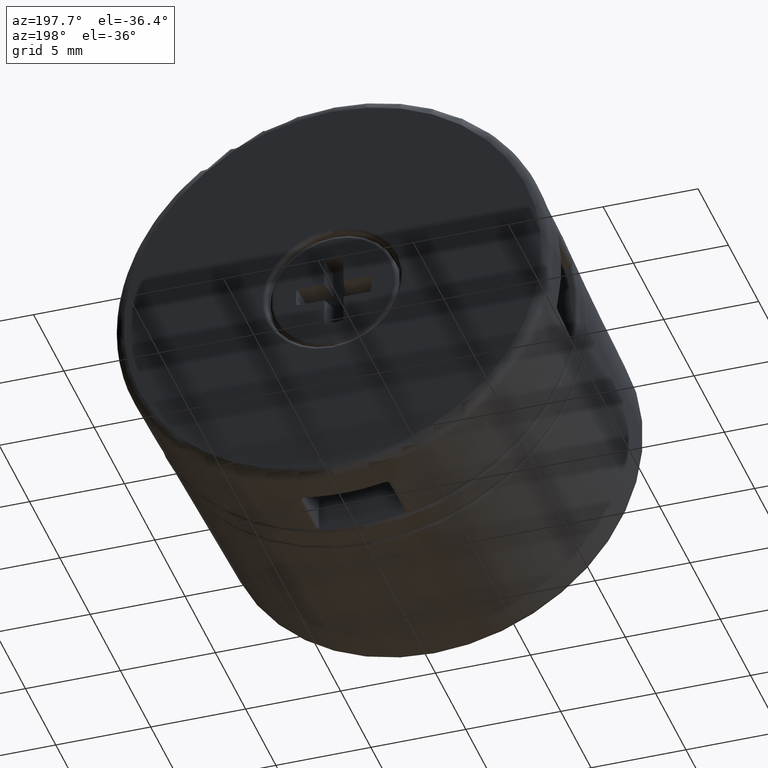
[diagram: clean part render]
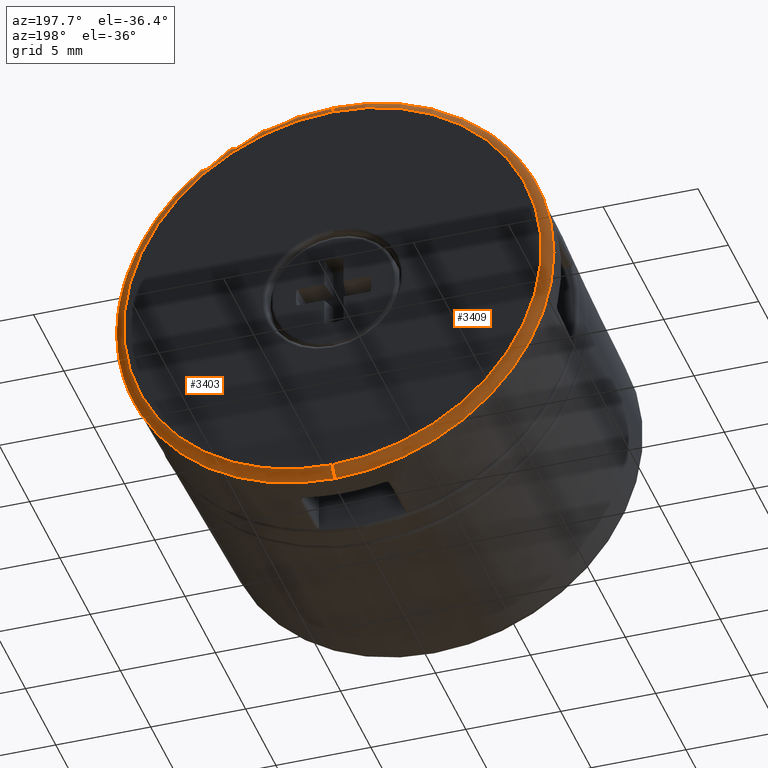
[diagram: same view with one multi-face feature highlighted, each face labeled with its STEP entity id]
A machine part, auxiliary view. The highlighted faces form ONE feature: a constant-radius fillet chain: 2 tangent blend faces with common blend radius 0.5 mm. The faces share edges in the B-rep.
Their STEP definitions:
[1] entity #3403 (Torus):
#865 = DIRECTION ( 'NONE',  ( -0.0000000000000000000, -1.000000000000000000, -0.0000000000000000000 ) ) ;
#888 = CARTESIAN_POINT ( 'NONE',  ( 0.0000000000000000000, 16.50000000000000000, 0.0000000000000000000 ) ) ;
#890 = FACE_OUTER_BOUND ( 'NONE', #4171, .T. ) ;
#891 = DIRECTION ( 'NONE',  ( 0.0000000000000000000, 0.0000000000000000000, -1.000000000000000000 ) ) ;
#1336 = CARTESIAN_POINT ( 'NONE',  ( 1.408343819019456200E-015, 16.48620075051201200, -11.50000000000000000 ) ) ;
#1358 = CARTESIAN_POINT ( 'NONE',  ( 0.0000000000000000000, 16.48620075051201200, 11.50000000000000000 ) ) ;
#1371 = CARTESIAN_POINT ( 'NONE',  ( 0.0000000000000000000, 17.00000000000000400, -11.00019045555975200 ) ) ;
#1372 = CARTESIAN_POINT ( 'NONE',  ( 1.377739311080353800E-015, 17.00000000000000400, 11.00019045555975200 ) ) ;
#1502 = TOROIDAL_SURFACE ( 'NONE', #1513, 11.00019045555975200, 0.5000000000000022200 ) ;
#1513 = AXIS2_PLACEMENT_3D ( 'NONE', #888, #865, #891 ) ;
#1816 = CIRCLE ( 'NONE', #1822, 11.50000000000000000 ) ;
#1822 = AXIS2_PLACEMENT_3D ( 'NONE', #2816, #2804, #2813 ) ;
#2436 = AXIS2_PLACEMENT_3D ( 'NONE', #2647, #2628, #2629 ) ;
#2442 = CIRCLE ( 'NONE', #2486, 0.5000000000000022200 ) ;
#2455 = CIRCLE ( 'NONE', #2465, 11.00019045555975200 ) ;
#2465 = AXIS2_PLACEMENT_3D ( 'NONE', #2654, #2611, #2656 ) ;
#2486 = AXIS2_PLACEMENT_3D ( 'NONE', #2651, #2634, #2639 ) ;
#2492 = CIRCLE ( 'NONE', #2436, 0.5000000000000022200 ) ;
#2611 = DIRECTION ( 'NONE',  ( -0.0000000000000000000, -1.000000000000000000, -0.0000000000000000000 ) ) ;
#2628 = DIRECTION ( 'NONE',  ( 1.000000000000000000, 0.0000000000000000000, -1.224646799147353200E-016 ) ) ;
#2629 = DIRECTION ( 'NONE',  ( -1.224646799147352700E-016, 0.0000000000000000000, -1.000000000000000000 ) ) ;
#2634 = DIRECTION ( 'NONE',  ( -1.000000000000000000, 0.0000000000000000000, 0.0000000000000000000 ) ) ;
#2639 = DIRECTION ( 'NONE',  ( 0.0000000000000000000, 0.0000000000000000000, 1.000000000000000000 ) ) ;
#2647 = CARTESIAN_POINT ( 'NONE',  ( 1.347134803141251400E-015, 16.50000000000000000, 11.00019045555975200 ) ) ;
#2651 = CARTESIAN_POINT ( 'NONE',  ( 0.0000000000000000000, 16.50000000000000000, -11.00019045555975200 ) ) ;
#2654 = CARTESIAN_POINT ( 'NONE',  ( 0.0000000000000000000, 17.00000000000000400, 0.0000000000000000000 ) ) ;
#2656 = DIRECTION ( 'NONE',  ( 0.0000000000000000000, 0.0000000000000000000, -1.000000000000000000 ) ) ;
#2804 = DIRECTION ( 'NONE',  ( -0.0000000000000000000, -1.000000000000000000, -0.0000000000000000000 ) ) ;
#2813 = DIRECTION ( 'NONE',  ( 0.0000000000000000000, 0.0000000000000000000, -1.000000000000000000 ) ) ;
#2816 = CARTESIAN_POINT ( 'NONE',  ( 0.0000000000000000000, 16.48620075051201200, 0.0000000000000000000 ) ) ;
#3007 = EDGE_CURVE ( 'NONE', #3633, #3636, #2492, .T. ) ;
#3011 = EDGE_CURVE ( 'NONE', #3631, #3647, #2442, .T. ) ;
#3012 = EDGE_CURVE ( 'NONE', #3631, #3633, #2455, .T. ) ;
#3055 = EDGE_CURVE ( 'NONE', #3647, #3636, #1816, .T. ) ;
#3403 = ADVANCED_FACE ( 'NONE', ( #890 ), #1502, .T. ) ;
#3631 = VERTEX_POINT ( 'NONE', #1371 ) ;
#3633 = VERTEX_POINT ( 'NONE', #1372 ) ;
#3636 = VERTEX_POINT ( 'NONE', #1358 ) ;
#3647 = VERTEX_POINT ( 'NONE', #1336 ) ;
#4112 = ORIENTED_EDGE ( 'NONE', *, *, #3011, .F. ) ;
#4123 = ORIENTED_EDGE ( 'NONE', *, *, #3012, .T. ) ;
#4144 = ORIENTED_EDGE ( 'NONE', *, *, #3007, .T. ) ;
#4147 = ORIENTED_EDGE ( 'NONE', *, *, #3055, .F. ) ;
#4171 = EDGE_LOOP ( 'NONE', ( #4123, #4144, #4147, #4112 ) ) ;
[2] entity #3409 (Torus):
#118 = ORIENTED_EDGE ( 'NONE', *, *, #3130, .F. ) ;
#122 = ORIENTED_EDGE ( 'NONE', *, *, #3011, .T. ) ;
#129 = ORIENTED_EDGE ( 'NONE', *, *, #3148, .T. ) ;
#898 = DIRECTION ( 'NONE',  ( -0.0000000000000000000, -1.000000000000000000, -0.0000000000000000000 ) ) ;
#939 = CARTESIAN_POINT ( 'NONE',  ( 0.0000000000000000000, 16.50000000000000000, 0.0000000000000000000 ) ) ;
#941 = DIRECTION ( 'NONE',  ( 0.0000000000000000000, 0.0000000000000000000, -1.000000000000000000 ) ) ;
#942 = FACE_OUTER_BOUND ( 'NONE', #4258, .T. ) ;
#1336 = CARTESIAN_POINT ( 'NONE',  ( 1.408343819019456200E-015, 16.48620075051201200, -11.50000000000000000 ) ) ;
#1358 = CARTESIAN_POINT ( 'NONE',  ( 0.0000000000000000000, 16.48620075051201200, 11.50000000000000000 ) ) ;
#1371 = CARTESIAN_POINT ( 'NONE',  ( 0.0000000000000000000, 17.00000000000000400, -11.00019045555975200 ) ) ;
#1372 = CARTESIAN_POINT ( 'NONE',  ( 1.377739311080353800E-015, 17.00000000000000400, 11.00019045555975200 ) ) ;
#1537 = TOROIDAL_SURFACE ( 'NONE', #1539, 11.00019045555975200, 0.5000000000000022200 ) ;
#1539 = AXIS2_PLACEMENT_3D ( 'NONE', #939, #898, #941 ) ;
#1908 = AXIS2_PLACEMENT_3D ( 'NONE', #2223, #2189, #2181 ) ;
#1919 = CIRCLE ( 'NONE', #1908, 11.50000000000000000 ) ;
#1956 = CIRCLE ( 'NONE', #1975, 11.00019045555975200 ) ;
#1975 = AXIS2_PLACEMENT_3D ( 'NONE', #2373, #2355, #2353 ) ;
#2181 = DIRECTION ( 'NONE',  ( 0.0000000000000000000, 0.0000000000000000000, -1.000000000000000000 ) ) ;
#2189 = DIRECTION ( 'NONE',  ( -0.0000000000000000000, -1.000000000000000000, -0.0000000000000000000 ) ) ;
#2223 = CARTESIAN_POINT ( 'NONE',  ( 0.0000000000000000000, 16.48620075051201200, 0.0000000000000000000 ) ) ;
#2353 = DIRECTION ( 'NONE',  ( 0.0000000000000000000, 0.0000000000000000000, -1.000000000000000000 ) ) ;
#2355 = DIRECTION ( 'NONE',  ( -0.0000000000000000000, -1.000000000000000000, -0.0000000000000000000 ) ) ;
#2373 = CARTESIAN_POINT ( 'NONE',  ( 0.0000000000000000000, 17.00000000000000400, 0.0000000000000000000 ) ) ;
#2436 = AXIS2_PLACEMENT_3D ( 'NONE', #2647, #2628, #2629 ) ;
#2442 = CIRCLE ( 'NONE', #2486, 0.5000000000000022200 ) ;
#2486 = AXIS2_PLACEMENT_3D ( 'NONE', #2651, #2634, #2639 ) ;
#2492 = CIRCLE ( 'NONE', #2436, 0.5000000000000022200 ) ;
#2628 = DIRECTION ( 'NONE',  ( 1.000000000000000000, 0.0000000000000000000, -1.224646799147353200E-016 ) ) ;
#2629 = DIRECTION ( 'NONE',  ( -1.224646799147352700E-016, 0.0000000000000000000, -1.000000000000000000 ) ) ;
#2634 = DIRECTION ( 'NONE',  ( -1.000000000000000000, 0.0000000000000000000, 0.0000000000000000000 ) ) ;
#2639 = DIRECTION ( 'NONE',  ( 0.0000000000000000000, 0.0000000000000000000, 1.000000000000000000 ) ) ;
#2647 = CARTESIAN_POINT ( 'NONE',  ( 1.347134803141251400E-015, 16.50000000000000000, 11.00019045555975200 ) ) ;
#2651 = CARTESIAN_POINT ( 'NONE',  ( 0.0000000000000000000, 16.50000000000000000, -11.00019045555975200 ) ) ;
#3007 = EDGE_CURVE ( 'NONE', #3633, #3636, #2492, .T. ) ;
#3011 = EDGE_CURVE ( 'NONE', #3631, #3647, #2442, .T. ) ;
#3130 = EDGE_CURVE ( 'NONE', #3636, #3647, #1919, .T. ) ;
#3148 = EDGE_CURVE ( 'NONE', #3633, #3631, #1956, .T. ) ;
#3409 = ADVANCED_FACE ( 'NONE', ( #942 ), #1537, .T. ) ;
#3631 = VERTEX_POINT ( 'NONE', #1371 ) ;
#3633 = VERTEX_POINT ( 'NONE', #1372 ) ;
#3636 = VERTEX_POINT ( 'NONE', #1358 ) ;
#3647 = VERTEX_POINT ( 'NONE', #1336 ) ;
#3874 = ORIENTED_EDGE ( 'NONE', *, *, #3007, .F. ) ;
#4258 = EDGE_LOOP ( 'NONE', ( #3874, #129, #122, #118 ) ) ;